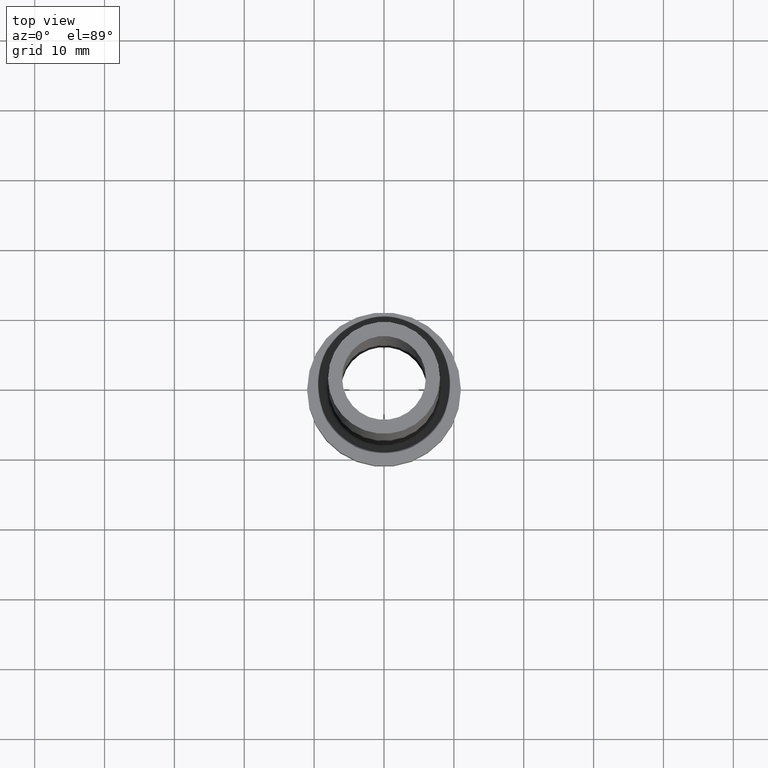
[diagram: clean part render]
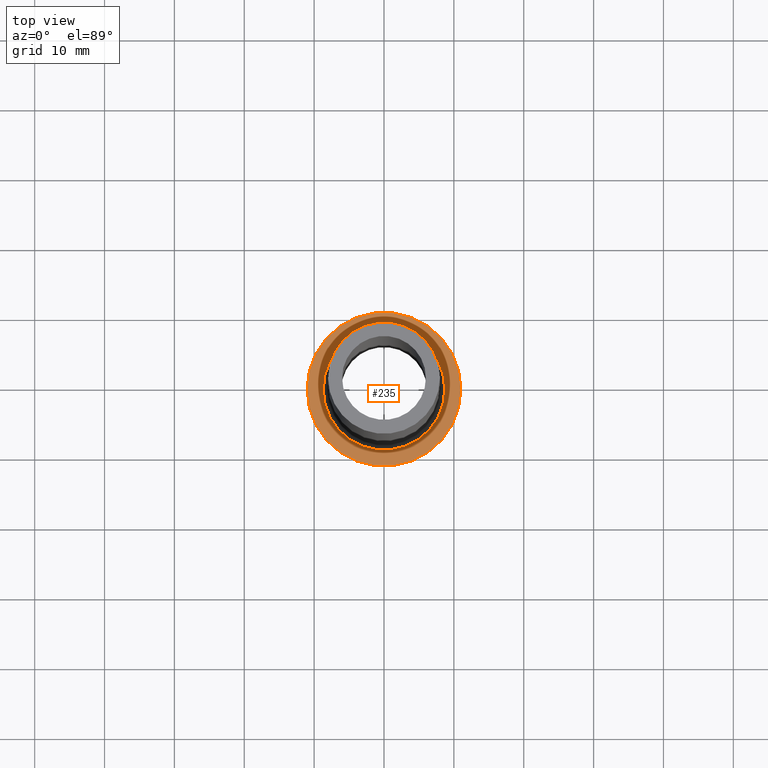
[diagram: same view with one face highlighted and labeled with its STEP entity id]
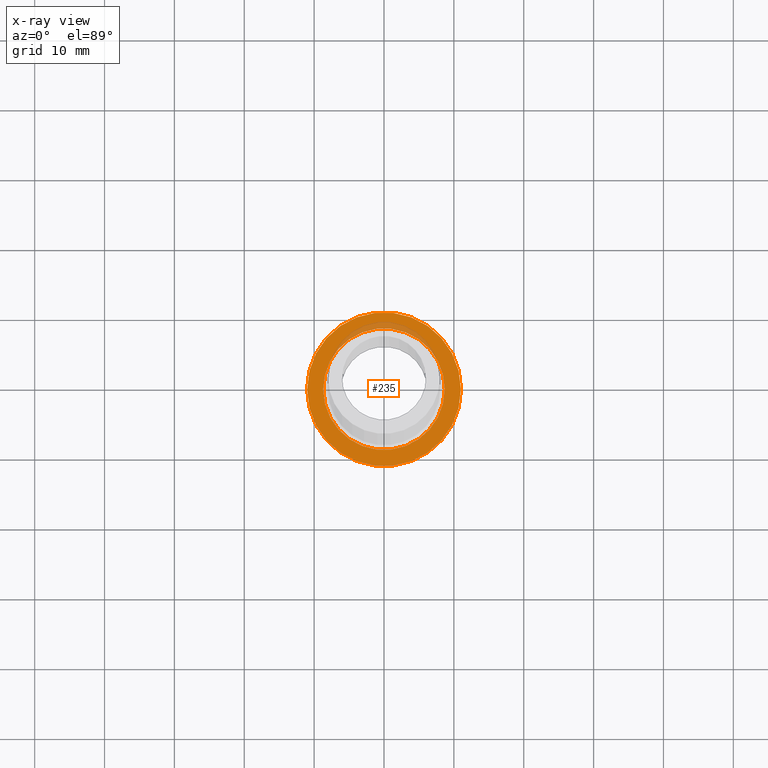
[diagram: x-ray of the same camera — body ghosted, the highlighted face saturated]
A machine part, top view. The second image highlights one B-rep face of the part: STEP entity #235.
The next image is the same camera in x-ray: the body ghosted, the highlighted face saturated — about 8% of this face is hidden behind the body in this view.
In plain terms, the highlighted planar face has unit normal (0, 0, 1).
Its self-contained STEP definition (entity closure, byte-faithful):
#17 = DIRECTION ( 'NONE',  ( 0.000000000000000000, 0.000000000000000000, 1.000000000000000000 ) ) ;
#19 = DIRECTION ( 'NONE',  ( -0.000000000000000000, -0.000000000000000000, -1.000000000000000000 ) ) ;
#28 = EDGE_CURVE ( 'NONE', #443, #284, #53, .T. ) ;
#37 = ORIENTED_EDGE ( 'NONE', *, *, #61, .T. ) ;
#41 = ORIENTED_EDGE ( 'NONE', *, *, #414, .T. ) ;
#44 = CARTESIAN_POINT ( 'NONE',  ( 0.000000000000000000, 0.000000000000000000, 7.000000000000000000 ) ) ;
#47 = DIRECTION ( 'NONE',  ( 1.000000000000000000, 0.000000000000000000, 0.000000000000000000 ) ) ;
#53 = CIRCLE ( 'NONE', #239, 8.699999999999999289 ) ;
#61 = EDGE_CURVE ( 'NONE', #126, #320, #243, .T. ) ;
#67 = DIRECTION ( 'NONE',  ( 0.000000000000000000, 0.000000000000000000, 1.000000000000000000 ) ) ;
#68 = PLANE ( 'NONE',  #297 ) ;
#71 = CARTESIAN_POINT ( 'NONE',  ( -8.699999999999999289, 1.065442715258197248E-15, 6.999999999999999112 ) ) ;
#76 = AXIS2_PLACEMENT_3D ( 'NONE', #44, #244, #185 ) ;
#78 = EDGE_LOOP ( 'NONE', ( #80, #436 ) ) ;
#80 = ORIENTED_EDGE ( 'NONE', *, *, #28, .T. ) ;
#89 = DIRECTION ( 'NONE',  ( 1.000000000000000000, 0.000000000000000000, 0.000000000000000000 ) ) ;
#94 = CARTESIAN_POINT ( 'NONE',  ( 0.000000000000000000, 0.000000000000000000, 7.000000000000000000 ) ) ;
#103 = CARTESIAN_POINT ( 'NONE',  ( -11.00000000000000000, 0.000000000000000000, 7.000000000000000000 ) ) ;
#110 = EDGE_CURVE ( 'NONE', #284, #443, #422, .T. ) ;
#126 = VERTEX_POINT ( 'NONE', #103 ) ;
#150 = CARTESIAN_POINT ( 'NONE',  ( 11.00000000000000000, 1.347111479062088405E-15, 7.000000000000000000 ) ) ;
#185 = DIRECTION ( 'NONE',  ( 1.000000000000000000, 0.000000000000000000, 0.000000000000000000 ) ) ;
#194 = CARTESIAN_POINT ( 'NONE',  ( 0.000000000000000000, 0.000000000000000000, 7.000000000000000000 ) ) ;
#204 = FACE_BOUND ( 'NONE', #78, .T. ) ;
#235 = ADVANCED_FACE ( 'NONE', ( #204, #383 ), #68, .T. ) ;
#239 = AXIS2_PLACEMENT_3D ( 'NONE', #194, #19, #89 ) ;
#243 = CIRCLE ( 'NONE', #448, 11.00000000000000000 ) ;
#244 = DIRECTION ( 'NONE',  ( 0.000000000000000000, 0.000000000000000000, 1.000000000000000000 ) ) ;
#255 = CARTESIAN_POINT ( 'NONE',  ( 8.699999999999999289, 0.000000000000000000, 6.999999999999999112 ) ) ;
#284 = VERTEX_POINT ( 'NONE', #71 ) ;
#291 = EDGE_LOOP ( 'NONE', ( #37, #41 ) ) ;
#297 = AXIS2_PLACEMENT_3D ( 'NONE', #345, #67, #344 ) ;
#306 = CIRCLE ( 'NONE', #76, 11.00000000000000000 ) ;
#320 = VERTEX_POINT ( 'NONE', #150 ) ;
#333 = DIRECTION ( 'NONE',  ( -0.000000000000000000, -0.000000000000000000, -1.000000000000000000 ) ) ;
#334 = CARTESIAN_POINT ( 'NONE',  ( 0.000000000000000000, 0.000000000000000000, 7.000000000000000000 ) ) ;
#337 = DIRECTION ( 'NONE',  ( 1.000000000000000000, 0.000000000000000000, 0.000000000000000000 ) ) ;
#344 = DIRECTION ( 'NONE',  ( 1.000000000000000000, 0.000000000000000000, -0.000000000000000000 ) ) ;
#345 = CARTESIAN_POINT ( 'NONE',  ( 0.000000000000000000, 0.000000000000000000, 7.000000000000000000 ) ) ;
#370 = AXIS2_PLACEMENT_3D ( 'NONE', #94, #333, #47 ) ;
#383 = FACE_OUTER_BOUND ( 'NONE', #291, .T. ) ;
#414 = EDGE_CURVE ( 'NONE', #320, #126, #306, .T. ) ;
#422 = CIRCLE ( 'NONE', #370, 8.699999999999999289 ) ;
#436 = ORIENTED_EDGE ( 'NONE', *, *, #110, .T. ) ;
#443 = VERTEX_POINT ( 'NONE', #255 ) ;
#448 = AXIS2_PLACEMENT_3D ( 'NONE', #334, #17, #337 ) ;